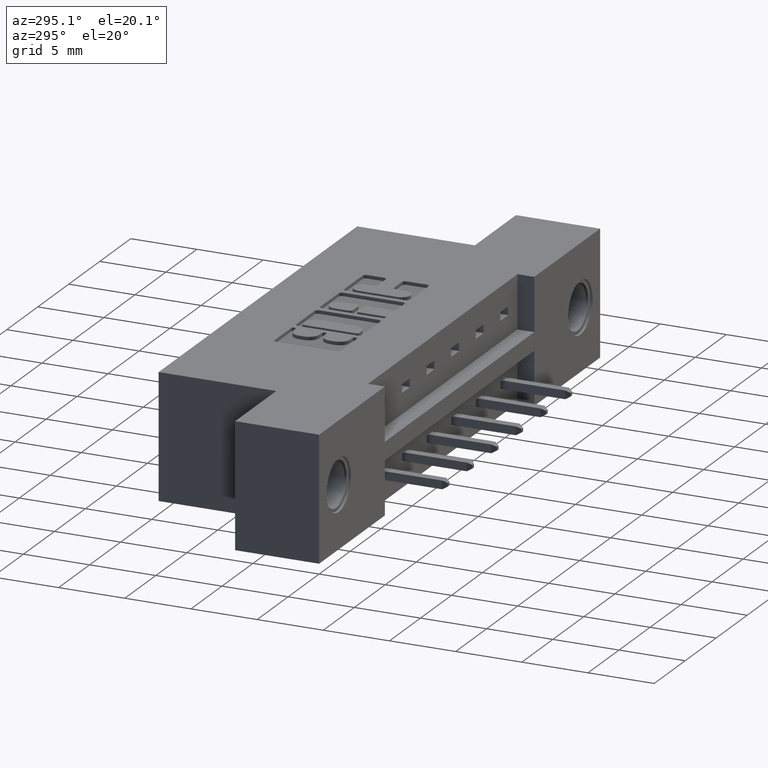
[diagram: clean part render]
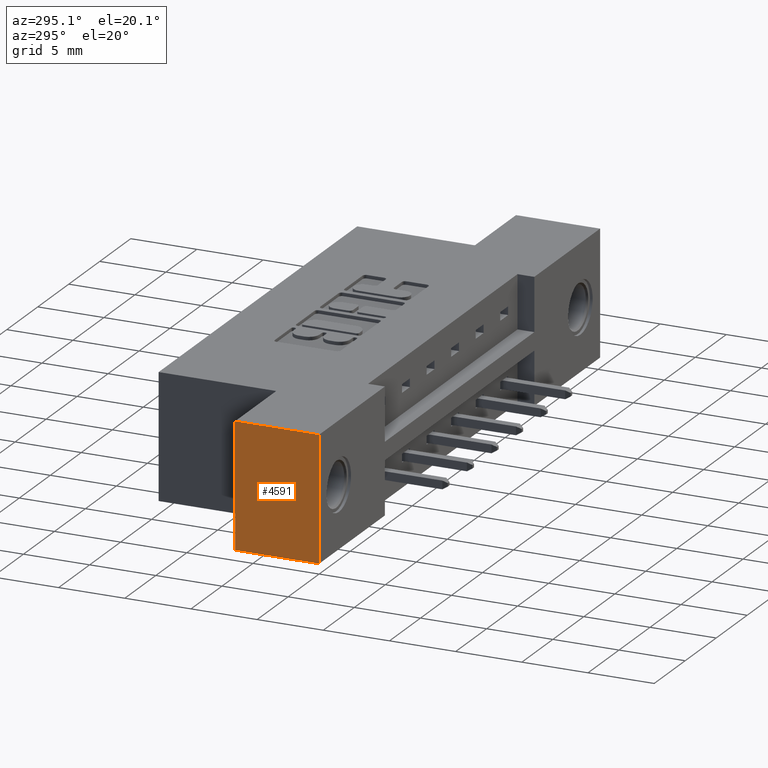
[diagram: same view with one face highlighted and labeled with its STEP entity id]
A machine part, auxiliary view. The second image highlights one B-rep face of the part: STEP entity #4591.
In plain terms, the highlighted planar face has unit normal (1, 0, 0).
Its self-contained STEP definition (entity closure, byte-faithful):
#11 = CARTESIAN_POINT ( 'NONE',  ( 0.0000000000000000000, 0.5999999999999999800, 0.0000000000000000000 ) ) ;
#417 = VECTOR ( 'NONE', #3816, 39.37007874015748100 ) ;
#1065 = EDGE_CURVE ( 'NONE', #8828, #2219, #4478, .T. ) ;
#1177 = AXIS2_PLACEMENT_3D ( 'NONE', #4327, #7958, #3595 ) ;
#1466 = CARTESIAN_POINT ( 'NONE',  ( 0.0000000000000000000, 0.2500000000000000000, 0.0000000000000000000 ) ) ;
#1526 = EDGE_LOOP ( 'NONE', ( #6622, #7102, #5288, #3848 ) ) ;
#1670 = VECTOR ( 'NONE', #2956, 39.37007874015748100 ) ;
#2083 = PLANE ( 'NONE',  #1177 ) ;
#2117 = CARTESIAN_POINT ( 'NONE',  ( 0.0000000000000000000, 0.0000000000000000000, -0.3700000000000000000 ) ) ;
#2219 = VERTEX_POINT ( 'NONE', #2734 ) ;
#2489 = VECTOR ( 'NONE', #4100, 39.37007874015748100 ) ;
#2571 = FACE_OUTER_BOUND ( 'NONE', #1526, .T. ) ;
#2650 = VECTOR ( 'NONE', #8140, 39.37007874015748100 ) ;
#2734 = CARTESIAN_POINT ( 'NONE',  ( 0.0000000000000000000, 0.0000000000000000000, 0.0000000000000000000 ) ) ;
#2956 = DIRECTION ( 'NONE',  ( -0.0000000000000000000, -1.000000000000000000, -0.0000000000000000000 ) ) ;
#3112 = LINE ( 'NONE', #11, #2650 ) ;
#3595 = DIRECTION ( 'NONE',  ( 0.0000000000000000000, 0.0000000000000000000, -1.000000000000000000 ) ) ;
#3619 = LINE ( 'NONE', #8051, #1670 ) ;
#3663 = CARTESIAN_POINT ( 'NONE',  ( 0.0000000000000000000, 0.2500000000000000000, -0.3700000000000000000 ) ) ;
#3816 = DIRECTION ( 'NONE',  ( 0.0000000000000000000, 0.0000000000000000000, 1.000000000000000000 ) ) ;
#3848 = ORIENTED_EDGE ( 'NONE', *, *, #7667, .F. ) ;
#4100 = DIRECTION ( 'NONE',  ( -0.0000000000000000000, -0.0000000000000000000, 1.000000000000000000 ) ) ;
#4327 = CARTESIAN_POINT ( 'NONE',  ( 0.0000000000000000000, 0.5999999999999999800, 0.0000000000000000000 ) ) ;
#4478 = LINE ( 'NONE', #5730, #2489 ) ;
#4591 = ADVANCED_FACE ( 'NONE', ( #2571 ), #2083, .F. ) ;
#4685 = EDGE_CURVE ( 'NONE', #6951, #8828, #3619, .T. ) ;
#5288 = ORIENTED_EDGE ( 'NONE', *, *, #1065, .T. ) ;
#5730 = CARTESIAN_POINT ( 'NONE',  ( 0.0000000000000000000, 0.0000000000000000000, 0.0000000000000000000 ) ) ;
#6306 = VERTEX_POINT ( 'NONE', #1466 ) ;
#6329 = LINE ( 'NONE', #8884, #417 ) ;
#6622 = ORIENTED_EDGE ( 'NONE', *, *, #7705, .F. ) ;
#6951 = VERTEX_POINT ( 'NONE', #3663 ) ;
#7102 = ORIENTED_EDGE ( 'NONE', *, *, #4685, .T. ) ;
#7667 = EDGE_CURVE ( 'NONE', #6306, #2219, #3112, .T. ) ;
#7705 = EDGE_CURVE ( 'NONE', #6951, #6306, #6329, .T. ) ;
#7958 = DIRECTION ( 'NONE',  ( 1.000000000000000000, -0.0000000000000000000, 0.0000000000000000000 ) ) ;
#8051 = CARTESIAN_POINT ( 'NONE',  ( 0.0000000000000000000, 0.5999999999999999800, -0.3700000000000000000 ) ) ;
#8140 = DIRECTION ( 'NONE',  ( -0.0000000000000000000, -1.000000000000000000, -0.0000000000000000000 ) ) ;
#8828 = VERTEX_POINT ( 'NONE', #2117 ) ;
#8884 = CARTESIAN_POINT ( 'NONE',  ( 0.0000000000000000000, 0.2500000000000000000, -0.3700000000000000000 ) ) ;